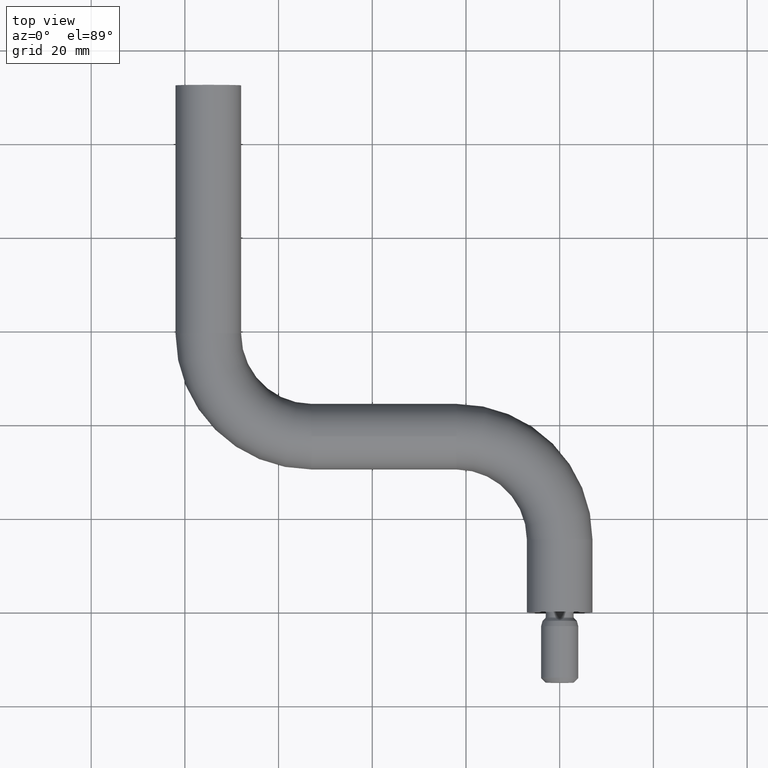
[diagram: clean part render]
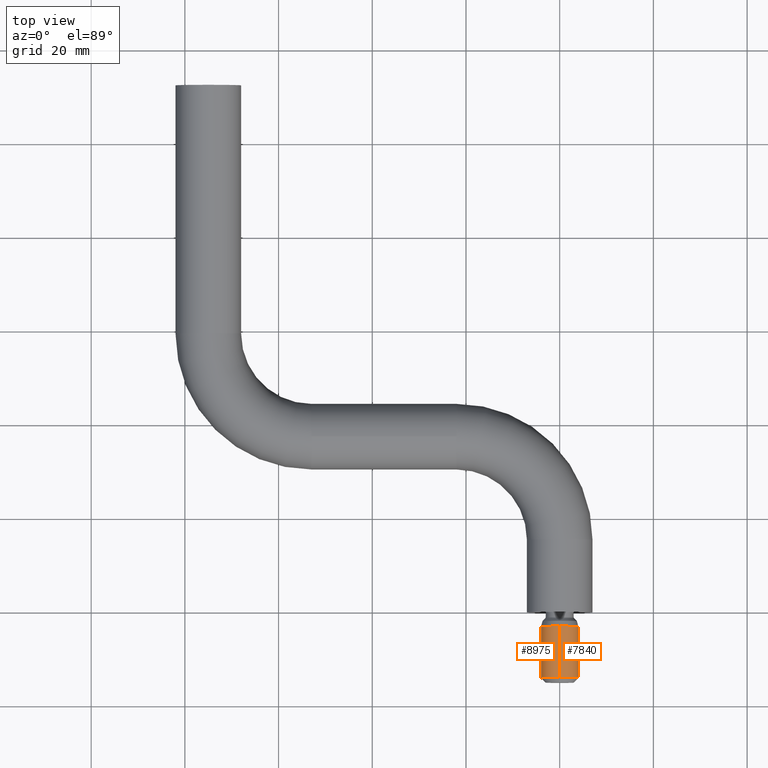
[diagram: same view with one multi-face feature highlighted, each face labeled with its STEP entity id]
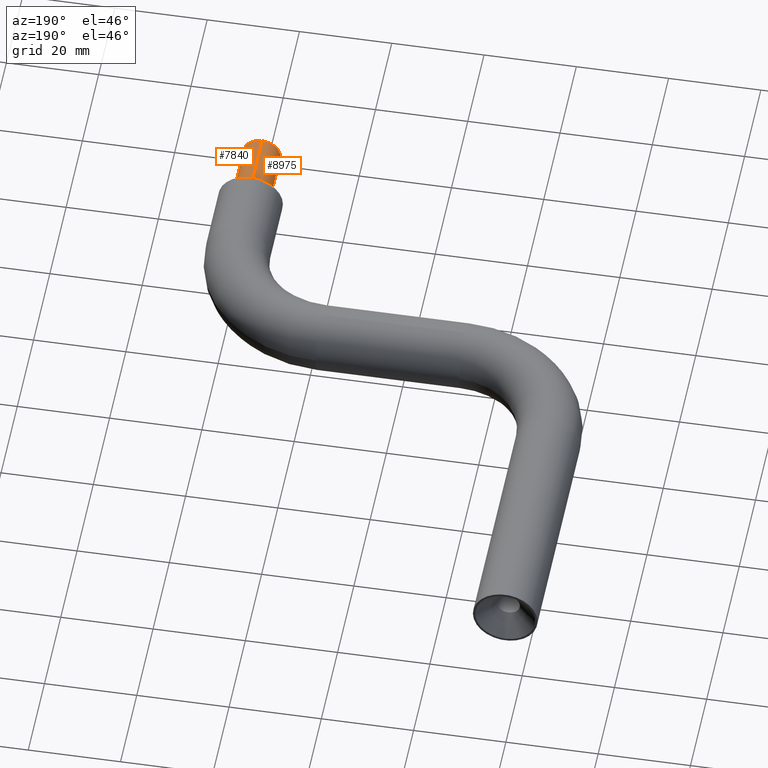
[diagram: same view with one multi-face feature highlighted, each face labeled with its STEP entity id]
A machine part, top view. The highlighted faces form ONE feature: a constant-radius fillet chain: 2 tangent blend faces with common blend radius 4 mm. The faces share edges in the B-rep.
A second angle (auxiliary view) of the same feature is appended — it is thin or edge-on in the first view.
Their STEP definitions:
[1] entity #7840 (Cylinder):
#742 = DIRECTION ( 'NONE',  ( 0.0000000000000000000, 0.0000000000000000000, 1.000000000000000000 ) ) ;
#820 = CARTESIAN_POINT ( 'NONE',  ( 0.0000000000000000000, -13.99999999999999800, 0.0000000000000000000 ) ) ;
#1078 = ORIENTED_EDGE ( 'NONE', *, *, #8041, .T. ) ;
#1417 = VERTEX_POINT ( 'NONE', #1500 ) ;
#1500 = CARTESIAN_POINT ( 'NONE',  ( 4.898587196589413800E-016, -13.99999999999999800, -4.000000000000000000 ) ) ;
#1540 = EDGE_CURVE ( 'NONE', #3805, #4082, #5533, .T. ) ;
#2554 = CARTESIAN_POINT ( 'NONE',  ( 0.0000000000000000000, -1.387778780781445700E-014, 0.0000000000000000000 ) ) ;
#2884 = ORIENTED_EDGE ( 'NONE', *, *, #8284, .F. ) ;
#3151 = EDGE_CURVE ( 'NONE', #1417, #4082, #8236, .T. ) ;
#3439 = EDGE_LOOP ( 'NONE', ( #1078, #10593, #5244, #2884 ) ) ;
#3805 = VERTEX_POINT ( 'NONE', #3948 ) ;
#3905 = VERTEX_POINT ( 'NONE', #13439 ) ;
#3948 = CARTESIAN_POINT ( 'NONE',  ( 0.0000000000000000000, -3.000000000000009800, 4.000000000000000000 ) ) ;
#4082 = VERTEX_POINT ( 'NONE', #4788 ) ;
#4224 = LINE ( 'NONE', #8580, #5955 ) ;
#4572 = CYLINDRICAL_SURFACE ( 'NONE', #13345, 4.000000000000000000 ) ;
#4788 = CARTESIAN_POINT ( 'NONE',  ( 4.898587196589412800E-016, -3.000000000000009800, -4.000000000000000000 ) ) ;
#5011 = DIRECTION ( 'NONE',  ( 0.0000000000000000000, 0.0000000000000000000, 1.000000000000000000 ) ) ;
#5244 = ORIENTED_EDGE ( 'NONE', *, *, #1540, .F. ) ;
#5520 = CARTESIAN_POINT ( 'NONE',  ( 4.898587196589412800E-016, -1.387778780781445700E-014, -4.000000000000000000 ) ) ;
#5533 = CIRCLE ( 'NONE', #8924, 4.000000000000000000 ) ;
#5896 = CARTESIAN_POINT ( 'NONE',  ( 0.0000000000000000000, -3.000000000000009800, 0.0000000000000000000 ) ) ;
#5955 = VECTOR ( 'NONE', #10530, 1000.000000000000000 ) ;
#6433 = DIRECTION ( 'NONE',  ( 0.0000000000000000000, 0.0000000000000000000, 1.000000000000000000 ) ) ;
#6960 = FACE_OUTER_BOUND ( 'NONE', #3439, .T. ) ;
#7564 = DIRECTION ( 'NONE',  ( -0.0000000000000000000, 1.000000000000000000, -0.0000000000000000000 ) ) ;
#7840 = ADVANCED_FACE ( 'NONE', ( #6960 ), #4572, .T. ) ;
#7908 = VECTOR ( 'NONE', #7564, 1000.000000000000000 ) ;
#8041 = EDGE_CURVE ( 'NONE', #3905, #1417, #10520, .T. ) ;
#8236 = LINE ( 'NONE', #5520, #7908 ) ;
#8284 = EDGE_CURVE ( 'NONE', #3905, #3805, #4224, .T. ) ;
#8580 = CARTESIAN_POINT ( 'NONE',  ( 0.0000000000000000000, -1.387778780781445700E-014, 4.000000000000000000 ) ) ;
#8924 = AXIS2_PLACEMENT_3D ( 'NONE', #5896, #12156, #742 ) ;
#10520 = CIRCLE ( 'NONE', #12826, 4.000000000000000000 ) ;
#10530 = DIRECTION ( 'NONE',  ( -0.0000000000000000000, 1.000000000000000000, -0.0000000000000000000 ) ) ;
#10593 = ORIENTED_EDGE ( 'NONE', *, *, #3151, .T. ) ;
#11790 = DIRECTION ( 'NONE',  ( -0.0000000000000000000, 1.000000000000000000, -0.0000000000000000000 ) ) ;
#12065 = DIRECTION ( 'NONE',  ( -0.0000000000000000000, 1.000000000000000000, -0.0000000000000000000 ) ) ;
#12156 = DIRECTION ( 'NONE',  ( -0.0000000000000000000, 1.000000000000000000, -0.0000000000000000000 ) ) ;
#12826 = AXIS2_PLACEMENT_3D ( 'NONE', #820, #12065, #5011 ) ;
#13345 = AXIS2_PLACEMENT_3D ( 'NONE', #2554, #11790, #6433 ) ;
#13439 = CARTESIAN_POINT ( 'NONE',  ( 0.0000000000000000000, -13.99999999999999800, 4.000000000000000000 ) ) ;
[2] entity #8975 (Cylinder):
#131 = EDGE_LOOP ( 'NONE', ( #12168, #5150, #2048, #7827 ) ) ;
#196 = FACE_OUTER_BOUND ( 'NONE', #131, .T. ) ;
#257 = DIRECTION ( 'NONE',  ( 0.0000000000000000000, 0.0000000000000000000, 1.000000000000000000 ) ) ;
#733 = CARTESIAN_POINT ( 'NONE',  ( 0.0000000000000000000, -3.000000000000009800, 0.0000000000000000000 ) ) ;
#829 = CIRCLE ( 'NONE', #8843, 4.000000000000000000 ) ;
#1417 = VERTEX_POINT ( 'NONE', #1500 ) ;
#1500 = CARTESIAN_POINT ( 'NONE',  ( 4.898587196589413800E-016, -13.99999999999999800, -4.000000000000000000 ) ) ;
#2048 = ORIENTED_EDGE ( 'NONE', *, *, #8284, .T. ) ;
#2594 = DIRECTION ( 'NONE',  ( 0.0000000000000000000, 0.0000000000000000000, 1.000000000000000000 ) ) ;
#3151 = EDGE_CURVE ( 'NONE', #1417, #4082, #8236, .T. ) ;
#3646 = CARTESIAN_POINT ( 'NONE',  ( 0.0000000000000000000, -13.99999999999999800, 0.0000000000000000000 ) ) ;
#3805 = VERTEX_POINT ( 'NONE', #3948 ) ;
#3858 = DIRECTION ( 'NONE',  ( -0.0000000000000000000, 1.000000000000000000, -0.0000000000000000000 ) ) ;
#3905 = VERTEX_POINT ( 'NONE', #13439 ) ;
#3948 = CARTESIAN_POINT ( 'NONE',  ( 0.0000000000000000000, -3.000000000000009800, 4.000000000000000000 ) ) ;
#3956 = DIRECTION ( 'NONE',  ( 0.0000000000000000000, 0.0000000000000000000, 1.000000000000000000 ) ) ;
#4082 = VERTEX_POINT ( 'NONE', #4788 ) ;
#4206 = EDGE_CURVE ( 'NONE', #1417, #3905, #829, .T. ) ;
#4224 = LINE ( 'NONE', #8580, #5955 ) ;
#4788 = CARTESIAN_POINT ( 'NONE',  ( 4.898587196589412800E-016, -3.000000000000009800, -4.000000000000000000 ) ) ;
#5150 = ORIENTED_EDGE ( 'NONE', *, *, #4206, .T. ) ;
#5520 = CARTESIAN_POINT ( 'NONE',  ( 4.898587196589412800E-016, -1.387778780781445700E-014, -4.000000000000000000 ) ) ;
#5569 = CYLINDRICAL_SURFACE ( 'NONE', #12402, 4.000000000000000000 ) ;
#5632 = EDGE_CURVE ( 'NONE', #4082, #3805, #9897, .T. ) ;
#5955 = VECTOR ( 'NONE', #10530, 1000.000000000000000 ) ;
#7430 = CARTESIAN_POINT ( 'NONE',  ( 0.0000000000000000000, -1.387778780781445700E-014, 0.0000000000000000000 ) ) ;
#7564 = DIRECTION ( 'NONE',  ( -0.0000000000000000000, 1.000000000000000000, -0.0000000000000000000 ) ) ;
#7827 = ORIENTED_EDGE ( 'NONE', *, *, #5632, .F. ) ;
#7908 = VECTOR ( 'NONE', #7564, 1000.000000000000000 ) ;
#8137 = AXIS2_PLACEMENT_3D ( 'NONE', #733, #3858, #3956 ) ;
#8236 = LINE ( 'NONE', #5520, #7908 ) ;
#8284 = EDGE_CURVE ( 'NONE', #3905, #3805, #4224, .T. ) ;
#8580 = CARTESIAN_POINT ( 'NONE',  ( 0.0000000000000000000, -1.387778780781445700E-014, 4.000000000000000000 ) ) ;
#8843 = AXIS2_PLACEMENT_3D ( 'NONE', #3646, #11701, #2594 ) ;
#8975 = ADVANCED_FACE ( 'NONE', ( #196 ), #5569, .T. ) ;
#9897 = CIRCLE ( 'NONE', #8137, 4.000000000000000000 ) ;
#10463 = DIRECTION ( 'NONE',  ( -0.0000000000000000000, 1.000000000000000000, -0.0000000000000000000 ) ) ;
#10530 = DIRECTION ( 'NONE',  ( -0.0000000000000000000, 1.000000000000000000, -0.0000000000000000000 ) ) ;
#11701 = DIRECTION ( 'NONE',  ( -0.0000000000000000000, 1.000000000000000000, -0.0000000000000000000 ) ) ;
#12168 = ORIENTED_EDGE ( 'NONE', *, *, #3151, .F. ) ;
#12402 = AXIS2_PLACEMENT_3D ( 'NONE', #7430, #10463, #257 ) ;
#13439 = CARTESIAN_POINT ( 'NONE',  ( 0.0000000000000000000, -13.99999999999999800, 4.000000000000000000 ) ) ;